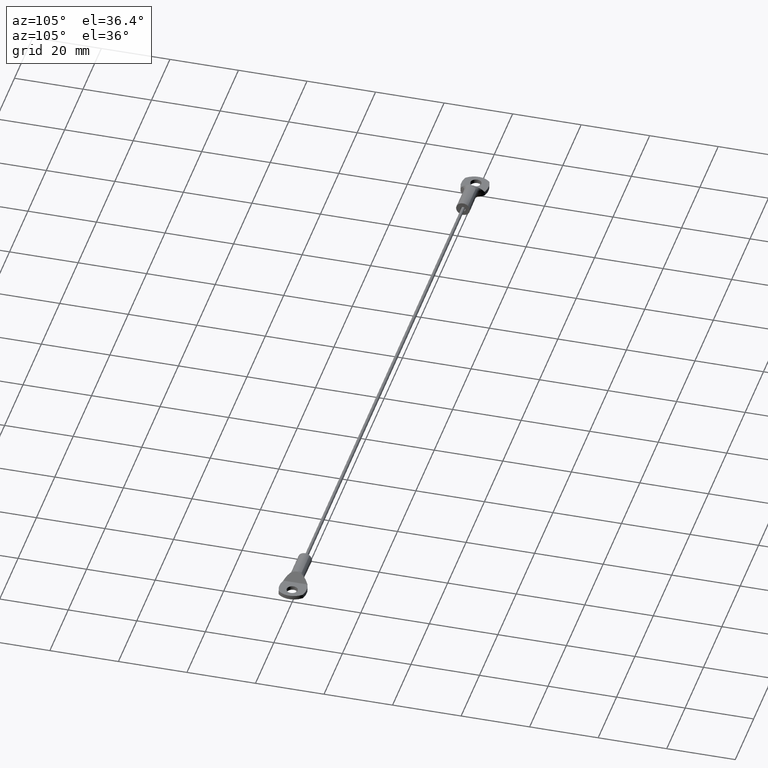
[diagram: clean part render]
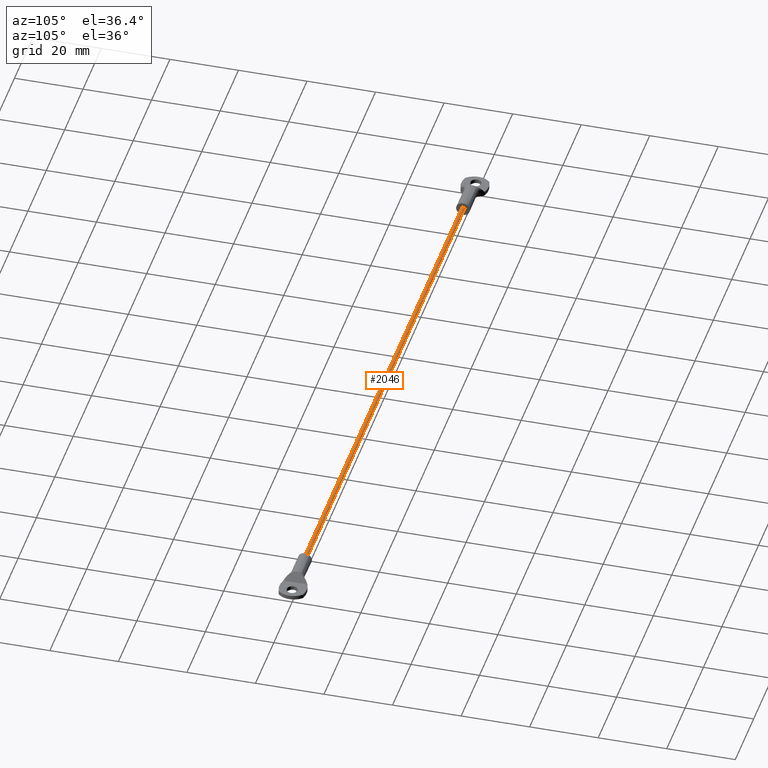
[diagram: same view with one face highlighted and labeled with its STEP entity id]
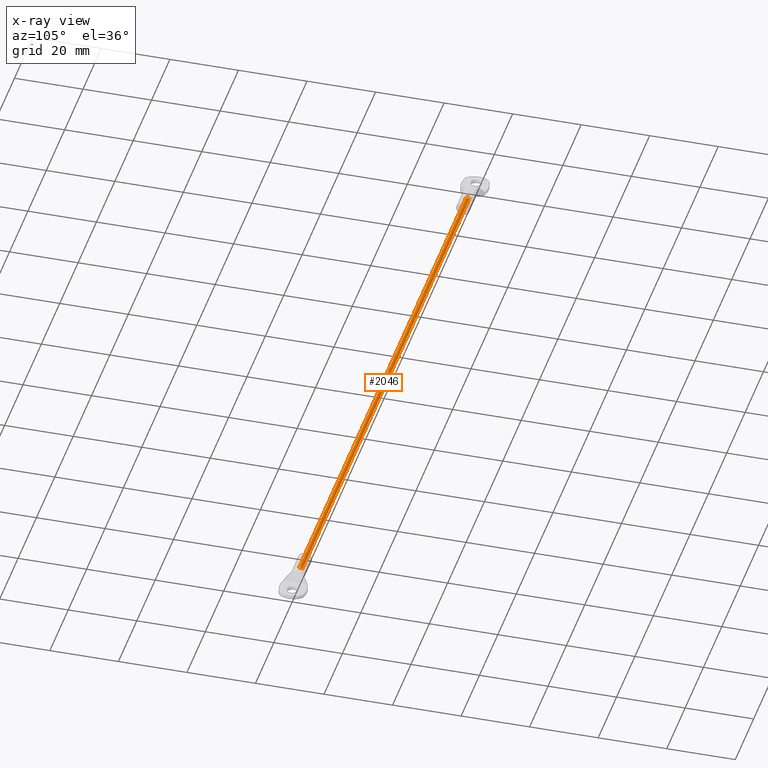
[diagram: x-ray of the same camera — body ghosted, the highlighted face saturated]
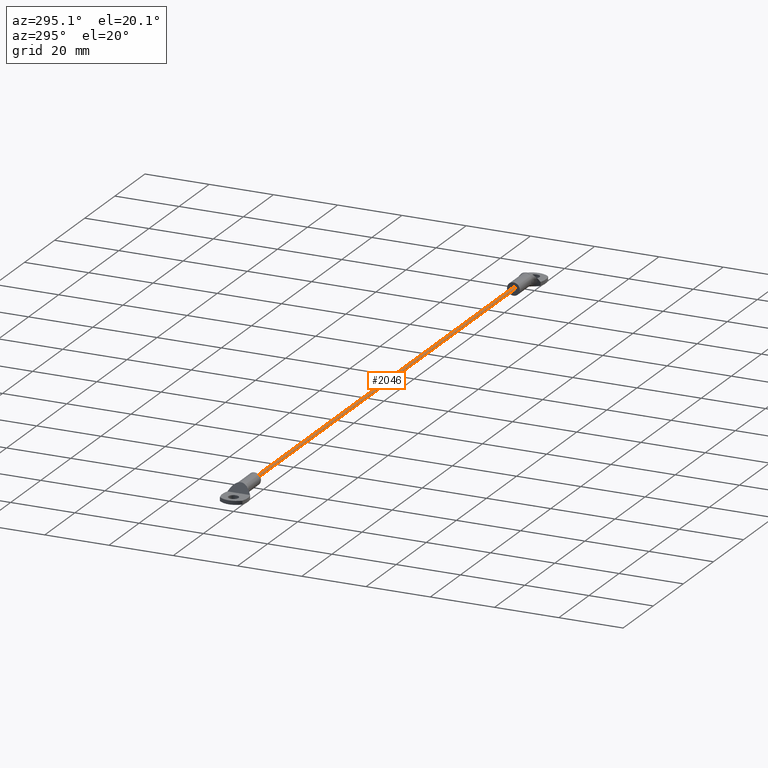
[diagram: same view with one face highlighted and labeled with its STEP entity id]
A machine part, auxiliary view. The second image highlights one B-rep face of the part: STEP entity #2046.
The next image is the same camera in x-ray: the body ghosted, the highlighted face saturated — about 0% of this face is hidden behind the body in this view.
A second angle (auxiliary view) of the same face is appended — the face is thin or edge-on in the first view.
In plain terms, the highlighted face is a freeform B-spline surface patch.
Its self-contained STEP definition (entity closure, byte-faithful):
#1883=CARTESIAN_POINT('',(-8.999999999999993,0.496504762495254,2.059017123104499));
#1884=VERTEX_POINT('',#1883);
#1902=CARTESIAN_POINT('',(-8.999999999999993,-0.499067399093134,1.969475728306569));
#1903=VERTEX_POINT('',#1902);
#1917=CARTESIAN_POINT('',(-191.0,-0.499067399093134,1.969475728306566));
#1918=VERTEX_POINT('',#1917);
#1919=CARTESIAN_POINT('',(-8.999999999999993,-0.499067399093134,1.969475728306569));
#1920=CARTESIAN_POINT('',(-191.0,-0.499067399093134,1.969475728306566));
#1921=QUASI_UNIFORM_CURVE('',1,(#1919,#1920),.UNSPECIFIED.,.F.,.U.);
#1922=EDGE_CURVE('',#1903,#1918,#1921,.T.);
#1939=CARTESIAN_POINT('',(-191.0,0.496504762495252,2.059017123104515));
#1940=VERTEX_POINT('',#1939);
#1956=CARTESIAN_POINT('',(-8.999999999999993,0.496504762495254,2.059017123104499));
#1957=CARTESIAN_POINT('',(-191.0,0.496504762495252,2.059017123104515));
#1958=QUASI_UNIFORM_CURVE('',1,(#1956,#1957),.UNSPECIFIED.,.F.,.U.);
#1959=EDGE_CURVE('',#1884,#1940,#1958,.T.);
#1964=CARTESIAN_POINT('',(-4.449999999999993,-0.499067399210933,1.969475730232572));
#1965=CARTESIAN_POINT('',(-4.449999999999993,-0.529591668978362,2.468543129443505));
#1966=CARTESIAN_POINT('',(-4.449999999999993,-0.030524269767428,2.499067399210933));
#1967=CARTESIAN_POINT('',(-4.449999999999992,0.440771745419750,2.527893098366264));
#1968=CARTESIAN_POINT('',(-4.449999999999994,0.496504763181833,2.059017117328379));
#1969=CARTESIAN_POINT('',(-195.663750000000110,-0.499067399210933,1.969475730232572));
#1970=CARTESIAN_POINT('',(-195.663750000000080,-0.529591668978362,2.468543129443505));
#1971=CARTESIAN_POINT('',(-195.663750000000110,-0.030524269767428,2.499067399210933));
#1972=CARTESIAN_POINT('',(-195.663750000000050,0.440771745419750,2.527893098366264));
#1973=CARTESIAN_POINT('',(-195.663750000000140,0.496504763181833,2.059017117328379));
#1981=(BOUNDED_SURFACE()B_SPLINE_SURFACE(2,1,((#1964,#1969),(#1965,#1970),(#1966,#1971),(#1967,#1972),(#1968,#1973)),.UNSPECIFIED.,.F.,.F.,.U.)B_SPLINE_SURFACE_WITH_KNOTS((3,2,3),(2,2),(0.0,1.570796326794897,3.078760800517997),(0.0,191.213750000000090),.UNSPECIFIED.)GEOMETRIC_REPRESENTATION_ITEM()RATIONAL_B_SPLINE_SURFACE(((1.0,1.0),(0.707106781186548,0.707106781186548),(1.0,1.0),(0.718822509939086,0.718822509939086),(0.977505800795127,0.977505800795127)))REPRESENTATION_ITEM('')SURFACE());
#1982=CARTESIAN_POINT('',(-9.0,0.0,2.500000000000000));
#1983=VERTEX_POINT('',#1982);
#1984=CARTESIAN_POINT('',(-9.0,0.0,2.500000000000000));
#1985=CARTESIAN_POINT('',(-9.000000000000002,0.444087252570310,2.500000000000000));
#1986=CARTESIAN_POINT('',(-8.999999999999993,0.496504762495254,2.059017123104499));
#1994=(BOUNDED_CURVE()B_SPLINE_CURVE(2,(#1984,#1985,#1986),.UNSPECIFIED.,.F.,.U.)B_SPLINE_CURVE_WITH_KNOTS((3,3),(0.0,0.229562469583424),.UNSPECIFIED.)CURVE()GEOMETRIC_REPRESENTATION_ITEM()RATIONAL_B_SPLINE_CURVE((1.0,0.731050837459783,0.956026746480573))REPRESENTATION_ITEM(''));
#1995=EDGE_CURVE('',#1983,#1884,#1994,.T.);
#1996=ORIENTED_EDGE('',*,*,#1995,.T.);
#1997=ORIENTED_EDGE('',*,*,#1959,.T.);
#1998=CARTESIAN_POINT('',(-191.0,0.0,2.500000000000000));
#1999=VERTEX_POINT('',#1998);
#2000=CARTESIAN_POINT('',(-191.0,0.0,2.500000000000000));
#2001=CARTESIAN_POINT('',(-190.999999999999970,0.444087252570282,2.500000000000000));
#2002=CARTESIAN_POINT('',(-191.000000000000060,0.496504762495252,2.059017123104515));
#2010=(BOUNDED_CURVE()B_SPLINE_CURVE(2,(#2000,#2001,#2002),.UNSPECIFIED.,.F.,.U.)B_SPLINE_CURVE_WITH_KNOTS((3,3),(0.0,0.229562469583413),.UNSPECIFIED.)CURVE()GEOMETRIC_REPRESENTATION_ITEM()RATIONAL_B_SPLINE_CURVE((1.0,0.731050837459795,0.956026746480552))REPRESENTATION_ITEM(''));
#2011=EDGE_CURVE('',#1999,#1940,#2010,.T.);
#2012=ORIENTED_EDGE('',*,*,#2011,.F.);
#2013=CARTESIAN_POINT('',(-191.000000000000030,-0.499067399093134,1.969475728306566));
#2014=CARTESIAN_POINT('',(-190.999999999999970,-0.500000000000000,1.984723616419301));
#2015=CARTESIAN_POINT('',(-191.0,-0.500000000000000,2.0));
#2016=CARTESIAN_POINT('',(-191.0,-0.500000000000000,2.500000000000000));
#2017=CARTESIAN_POINT('',(-191.0,0.0,2.500000000000000));
#2025=(BOUNDED_CURVE()B_SPLINE_CURVE(2,(#2013,#2014,#2015,#2016,#2017),.UNSPECIFIED.,.F.,.U.)B_SPLINE_CURVE_WITH_KNOTS((3,2,3),(0.739332960910180,0.750000000000000,1.0),.UNSPECIFIED.)CURVE()GEOMETRIC_REPRESENTATION_ITEM()RATIONAL_B_SPLINE_CURVE((0.976072038818926,0.987502786343095,1.0,0.707106781186548,1.0))REPRESENTATION_ITEM(''));
#2026=EDGE_CURVE('',#1918,#1999,#2025,.T.);
#2027=ORIENTED_EDGE('',*,*,#2026,.F.);
#2028=ORIENTED_EDGE('',*,*,#1922,.F.);
#2029=CARTESIAN_POINT('',(-8.999999999999993,-0.499067399093134,1.969475728306570));
#2030=CARTESIAN_POINT('',(-9.0,-0.500000000000000,1.984723616419303));
#2031=CARTESIAN_POINT('',(-9.0,-0.500000000000000,2.0));
#2032=CARTESIAN_POINT('',(-9.000000000000002,-0.500000000000000,2.500000000000000));
#2033=CARTESIAN_POINT('',(-9.0,0.0,2.500000000000000));
#2041=(BOUNDED_CURVE()B_SPLINE_CURVE(2,(#2029,#2030,#2031,#2032,#2033),.UNSPECIFIED.,.F.,.U.)B_SPLINE_CURVE_WITH_KNOTS((3,2,3),(0.739332960910182,0.750000000000000,1.0),.UNSPECIFIED.)CURVE()GEOMETRIC_REPRESENTATION_ITEM()RATIONAL_B_SPLINE_CURVE((0.976072038818931,0.987502786343098,1.0,0.707106781186548,1.0))REPRESENTATION_ITEM(''));
#2042=EDGE_CURVE('',#1903,#1983,#2041,.T.);
#2043=ORIENTED_EDGE('',*,*,#2042,.T.);
#2044=EDGE_LOOP('',(#1996,#1997,#2012,#2027,#2028,#2043));
#2045=FACE_OUTER_BOUND('',#2044,.T.);
#2046=ADVANCED_FACE('',(#2045),#1981,.T.);